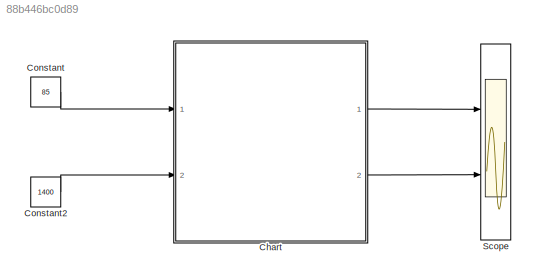
MODEL slx_88b446bc0d89
KIND model
CONFIG AbsTol = auto
CONFIG EnableMultiTasking = on
CONFIG FixedStep = 0.1
CONFIG MaxStep = auto
CONFIG MinStep = auto
CONFIG RelTol = 1e-3
CONFIG SampleTimeConstraint = Unconstrained
CONFIG Solver = FixedStepDiscrete
CONFIG SolverName = FixedStepDiscrete
CONFIG StartTime = 0.0
CONFIG StopTime = 30
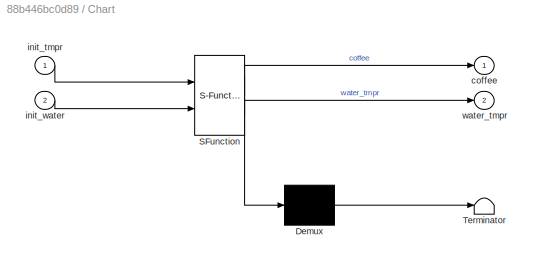
BLOCK [SubSystem] Chart
  ErrorFcn = Stateflow.Translate.translate
  PermitHierarchicalResolution = ExplicitOnly
  Ports = [2, 2]
  RequestExecContextInheritance = off
  SFBlockType = Chart
  TreatAsAtomicUnit = on
  Variant = off
BLOCK [Demux] Chart/ Demux 
  Outputs = 1
  Ports = [1, 1]
BLOCK [S-Function] Chart/ SFunction 
  EnableBusSupport = on
  FunctionName = sf_sfun
  PortCounts = [2 3]
  Ports = [2, 3]
  SFcnIsStateOwnerBlock = off
  SFunctionDeploymentMode = off
  Tag = Stateflow S-Function coffee 3
BLOCK [Terminator] Chart/ Terminator 
BLOCK [Outport] Chart/coffee
  IconDisplay = Port number
BLOCK [Inport] Chart/init_tmpr
  IconDisplay = Port number
BLOCK [Inport] Chart/init_water
  IconDisplay = Port number
  Port = 2
BLOCK [Outport] Chart/water_tmpr
  IconDisplay = Port number
  Port = 2
BLOCK [Constant] Constant
  OutDataTypeStr = int32
  Value = 85
BLOCK [Constant] Constant2
  OutDataTypeStr = int32
  Value = 1400
BLOCK [Scope] Scope
  NumInputPorts = 2
  Ports = [2]
  ScopeSpecificationString = Simulink.scopes.TimeScopeBlockCfg('CurrentConfiguration', extmgr.ConfigurationSet(extmgr.Configuration('Core','General UI',true),extmgr.Configuration('Core','Source UI',true),extmgr.Configuration('Sources','WiredSimulink',true),extmgr.Configuration('Visuals','Time Domain',true),extmgr.Configuration('Tools','Plot Navigation',true),extmgr.Configuration('Tools','Measurements',true)),'Version','2017a'...<+1ch>
LINE Chart:1 -> Scope:1
LINE Chart:2 -> Scope:2
LINE Constant2:1 -> Chart:2
LINE Constant:1 -> Chart:1
CHART Chart states=6 transitions=9
  STATE_LABEL "OFF\nentry:\ncoffee = 0;\nwater = init_water\nfprintf('OFF')"
  STATE_LABEL 'ON\nentry:\nwater_tmpr = init_tmpr;\n'
  STATE_LABEL 'HEATING\nentry: water_tmpr = water_tmpr + 10;\n'
  STATE_LABEL 'FILLING_CARAFE\nexit: water=water-20;\n coffee=coffee+20;'
  STATE_LABEL 'BEEPING'
  STATE_LABEL "{fprintf('HEATING')}"
  STATE_LABEL "after(1, sec)\n{fprintf('HEATING'),\n fprintf('<- water_tmpr - %d', water_tmpr)}"
  STATE_LABEL "[water_tmpr >=100]\n{fprintf('FILLING_CARAFE')}"
  STATE_LABEL "after(1, sec)\n{fprintf('FILLING_CARAFE'),\n fprintf('<- coffee - %d', coffee)}"
  STATE_LABEL "[coffee>=100]\n{fprintf('BEEPING'),\nfprintf('<- coffee - %d', coffee),\nfprintf('<- water - %d', water)}"
  STATE_LABEL 'HEATING\nentry: water_tmpr = water_tmpr + 10;\n'
  STATE_LABEL 'FILLING_CARAFE\nexit: water=water-20;\n coffee=coffee+20;'
  STATE_LABEL 'BEEPING'
  STATE_LABEL 'STANDBY\n'
